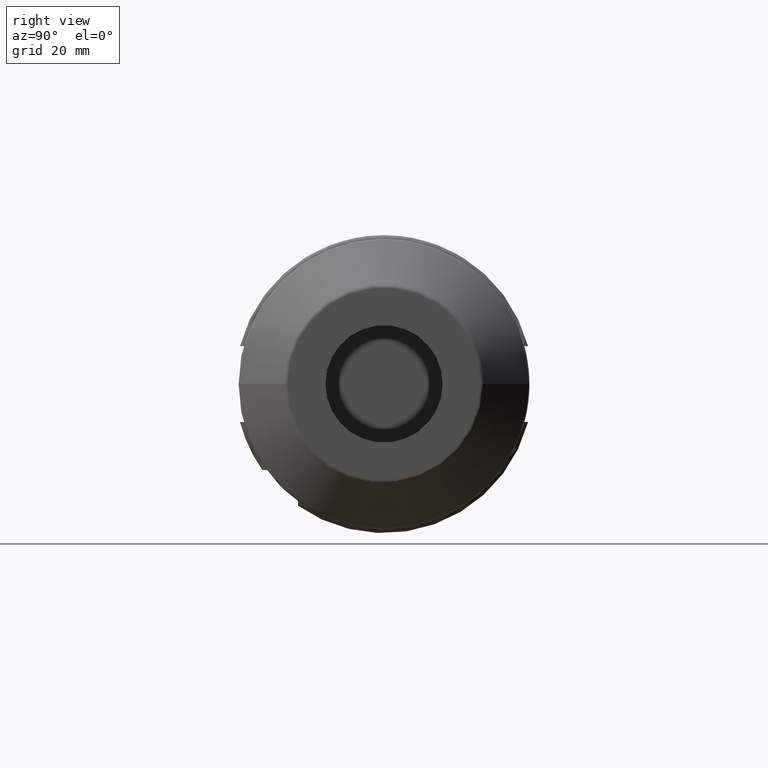
[diagram: clean part render]
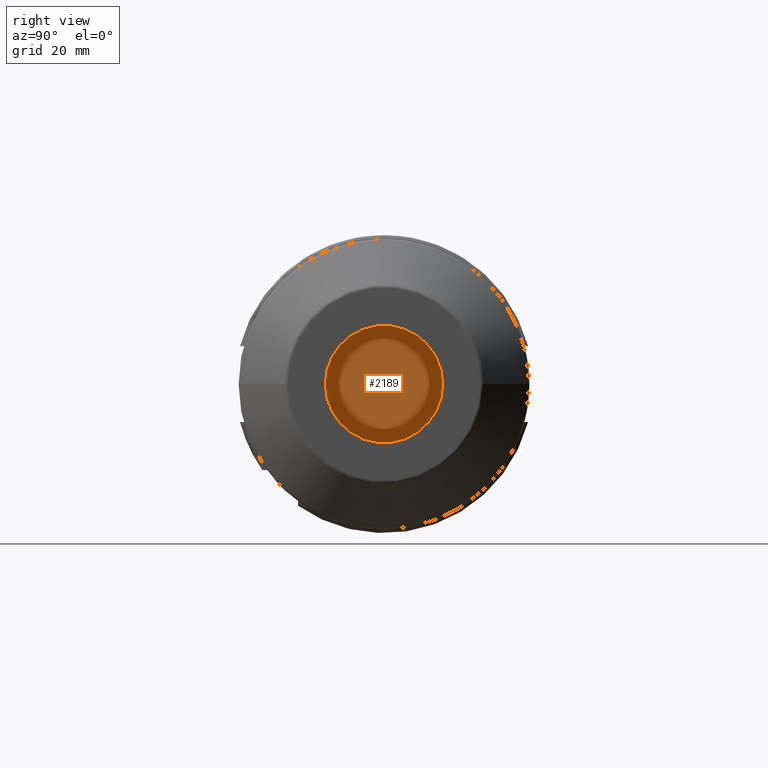
[diagram: same view with one face highlighted and labeled with its STEP entity id]
A machine part, right view. The second image highlights one B-rep face of the part: STEP entity #2189.
In plain terms, the highlighted planar face has unit normal (1, 0, 0).
Its self-contained STEP definition (entity closure, byte-faithful):
#314=CARTESIAN_POINT('',(-1.1E0,0.E0,0.E0));
#315=DIRECTION('',(-1.E0,0.E0,0.E0));
#316=DIRECTION('',(0.E0,1.E0,0.E0));
#317=AXIS2_PLACEMENT_3D('',#314,#315,#316);
#319=CARTESIAN_POINT('',(-1.1E0,0.E0,0.E0));
#320=DIRECTION('',(1.E0,0.E0,0.E0));
#321=DIRECTION('',(0.E0,1.E0,0.E0));
#322=AXIS2_PLACEMENT_3D('',#319,#320,#321);
#1734=CARTESIAN_POINT('',(-1.1E0,1.25E1,0.E0));
#1735=CARTESIAN_POINT('',(-1.1E0,-1.25E1,0.E0));
#1736=VERTEX_POINT('',#1734);
#1737=VERTEX_POINT('',#1735);
#2180=CARTESIAN_POINT('',(-1.1E0,0.E0,0.E0));
#2181=DIRECTION('',(1.E0,0.E0,0.E0));
#2182=DIRECTION('',(0.E0,-1.E0,0.E0));
#2183=AXIS2_PLACEMENT_3D('',#2180,#2181,#2182);
#2184=PLANE('',#2183);
#2185=ORIENTED_EDGE('',*,*,#2157,.T.);
#2186=ORIENTED_EDGE('',*,*,#2171,.F.);
#2187=EDGE_LOOP('',(#2185,#2186));
#2188=FACE_OUTER_BOUND('',#2187,.F.);
#2189=ADVANCED_FACE('',(#2188),#2184,.T.);
#318=CIRCLE('',#317,1.25E1);
#323=CIRCLE('',#322,1.25E1);
#2157=EDGE_CURVE('',#1736,#1737,#318,.T.);
#2171=EDGE_CURVE('',#1736,#1737,#323,.T.);